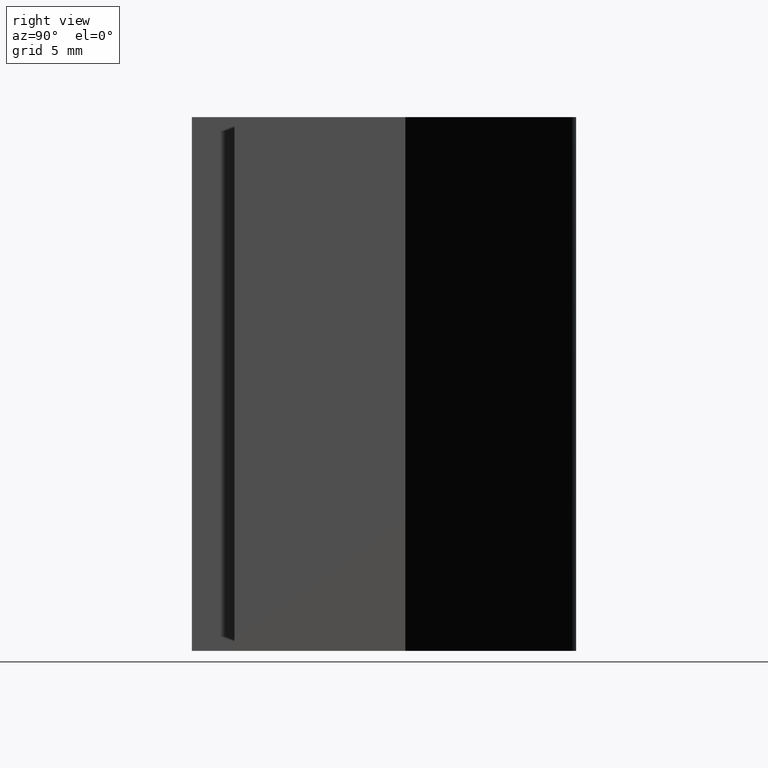
[diagram: clean part render]
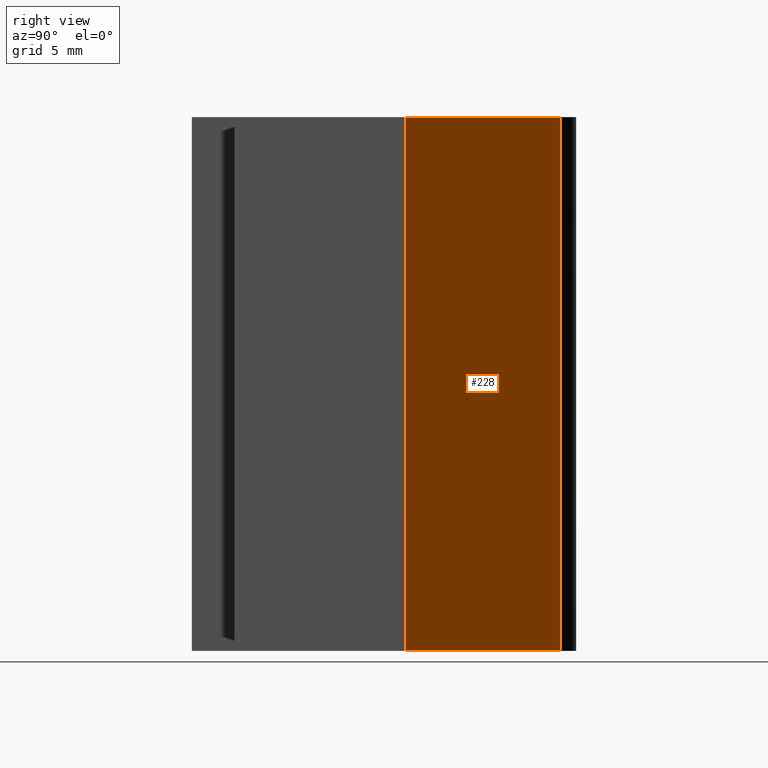
[diagram: same view with one face highlighted and labeled with its STEP entity id]
A machine part, right view. The second image highlights one B-rep face of the part: STEP entity #228.
In plain terms, the highlighted planar face has unit normal (0.7736, 0.6337, 0).
Its self-contained STEP definition (entity closure, byte-faithful):
#25=FACE_OUTER_BOUND('',#37,.T.);
#37=EDGE_LOOP('',(#187,#188,#189,#190));
#51=LINE('',#348,#79);
#65=LINE('',#378,#93);
#66=LINE('',#381,#94);
#67=LINE('',#382,#95);
#79=VECTOR('',#283,10.);
#93=VECTOR('',#313,10.);
#94=VECTOR('',#316,10.);
#95=VECTOR('',#317,10.);
#100=VERTEX_POINT('',#330);
#108=VERTEX_POINT('',#346);
#116=VERTEX_POINT('',#376);
#117=VERTEX_POINT('',#380);
#128=EDGE_CURVE('',#100,#108,#51,.T.);
#143=EDGE_CURVE('',#116,#108,#65,.T.);
#144=EDGE_CURVE('',#116,#117,#66,.T.);
#145=EDGE_CURVE('',#117,#100,#67,.T.);
#187=ORIENTED_EDGE('',*,*,#144,.T.);
#188=ORIENTED_EDGE('',*,*,#145,.T.);
#189=ORIENTED_EDGE('',*,*,#128,.T.);
#190=ORIENTED_EDGE('',*,*,#143,.F.);
#216=PLANE('',#265);
#228=ADVANCED_FACE('',(#25),#216,.T.);
#265=AXIS2_PLACEMENT_3D('',#379,#314,#315);
#283=DIRECTION('',(-0.633670497075444,0.773603064327023,0.));
#313=DIRECTION('',(0.,0.,-1.));
#314=DIRECTION('center_axis',(0.773603064327023,0.633670497075444,0.));
#315=DIRECTION('ref_axis',(0.,0.,-1.));
#316=DIRECTION('',(0.633670497075444,-0.773603064327023,0.));
#317=DIRECTION('',(0.,0.,-1.));
#330=CARTESIAN_POINT('',(7.5,8.,-12.5));
#346=CARTESIAN_POINT('',(1.54720612865404,15.2673409941509,-12.5));
#348=CARTESIAN_POINT('',(1.54720612865404,15.2673409941509,-12.5));
#376=CARTESIAN_POINT('',(1.54720612865404,15.2673409941509,12.5));
#378=CARTESIAN_POINT('',(1.54720612865404,15.2673409941509,0.));
#379=CARTESIAN_POINT('Origin',(1.54720612865404,15.2673409941509,0.));
#380=CARTESIAN_POINT('',(7.5,8.,12.5));
#381=CARTESIAN_POINT('',(1.54720612865404,15.2673409941509,12.5));
#382=CARTESIAN_POINT('',(7.5,8.,0.));